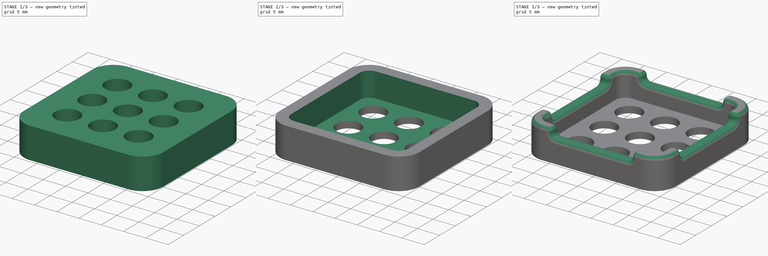
[diagram: build sequence overview — one tinted view per stage of 3, left to right]
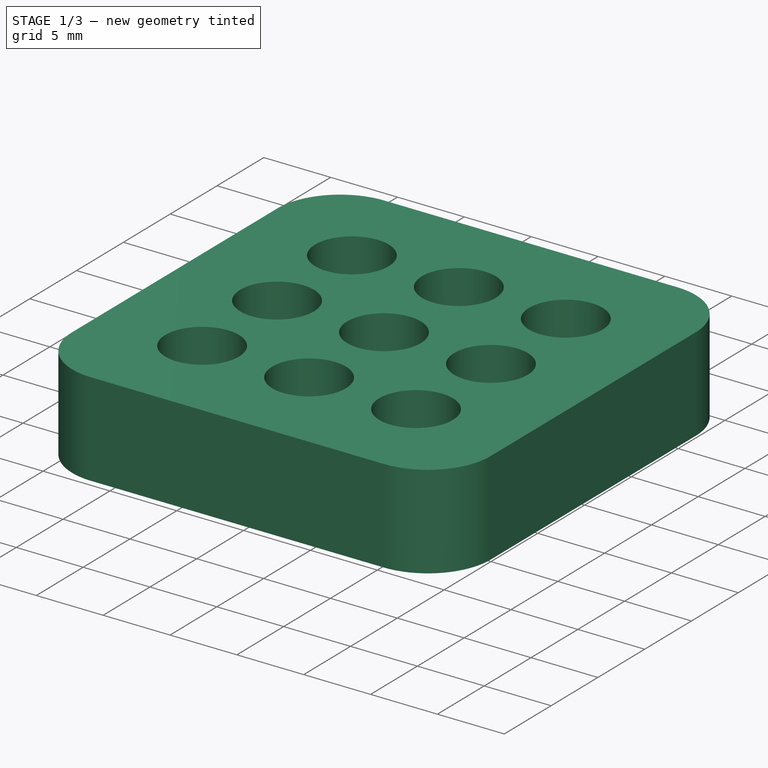
[diagram: stage 1 of 3 — iso view after this stage's code; geometry added in this stage tinted green]
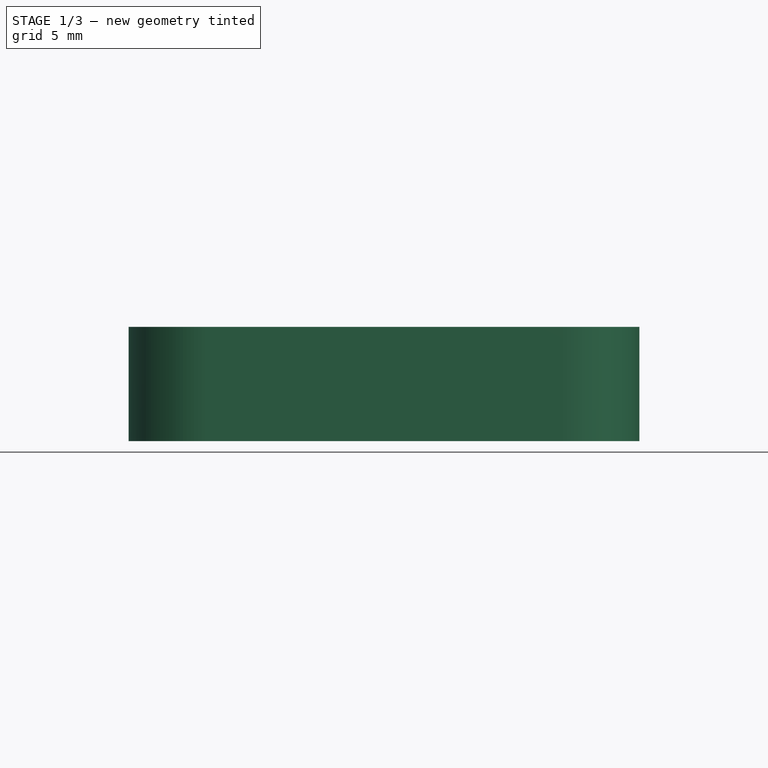
[diagram: stage 1 of 3 — front view after this stage's code; geometry added in this stage tinted green]
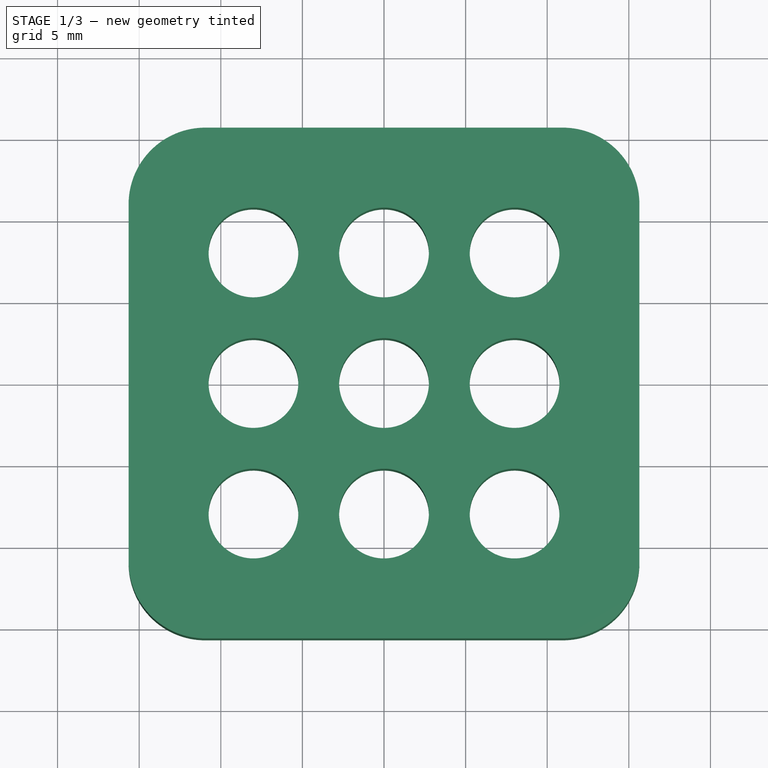
[diagram: stage 1 of 3 — top view after this stage's code; geometry added in this stage tinted green]
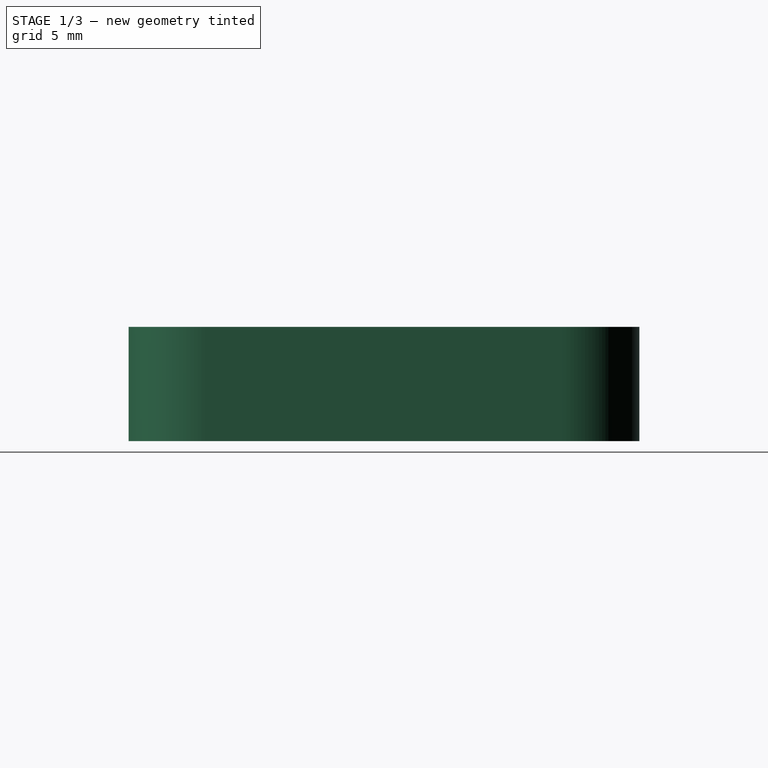
[diagram: stage 1 of 3 — right view after this stage's code; geometry added in this stage tinted green]
FCSTD DOCUMENT  (FreeCAD 1.0R39109 (Git))
Label: Monitor-Guide
License: All rights reserved
LicenseURL: http://en.wikipedia.org/wiki/All_rights_reserved
objects: Sketcher::SketchObject×4, PartDesign::Pocket×3, PartDesign::Pad×1, PartDesign::Fillet×1, PartDesign::Body×1
note: 24 computed .brp shape members not serialized (recipe doc carries the construction recipe); baked Part::Feature solids carry a one-line shape summary decoded from their .brp

FEATURE [Sketcher::SketchObject] Sketch  label="Recess"
  ArcFitTolerance = 0
  AttachmentSupport = -> [XY_Plane]
  FullyConstrained = true
  MakeInternals = false
  MapMode = 5
  sketch-geometry (15):
    g0: LineSegment [constr] StartX=-13.15 StartY=-13.15 StartZ=0 EndX=-13.15 EndY=13.15 EndZ=0
    g1: LineSegment [constr] StartX=-13.15 StartY=13.15 StartZ=0 EndX=13.15 EndY=13.15 EndZ=0
    g2: LineSegment [constr] StartX=13.15 StartY=13.15 StartZ=0 EndX=13.15 EndY=-13.15 EndZ=0
    g3: LineSegment [constr] StartX=13.15 StartY=-13.15 StartZ=0 EndX=-13.15 EndY=-13.15 EndZ=0
    g4: GeomPoint [constr] X=0 Y=0 Z=0
    g5: ArcOfCircle CenterX=-10.95 CenterY=10.95 CenterZ=0 NormalX=0 NormalY=0 NormalZ=1 AngleXU=0 Radius=2.2 StartAngle=1.5708 EndAngle=3.14159
    g6: LineSegment StartX=-10.95 StartY=13.15 StartZ=0 EndX=10.95 EndY=13.15 EndZ=0
    g7: ArcOfCircle CenterX=10.95 CenterY=10.95 CenterZ=0 NormalX=0 NormalY=0 NormalZ=1 AngleXU=0 Radius=2.2 StartAngle=5e-16 EndAngle=1.5708
    g8: LineSegment StartX=13.15 StartY=10.95 StartZ=0 EndX=13.15 EndY=-10.95 EndZ=0
    g9: ArcOfCircle CenterX=10.95 CenterY=-10.95 CenterZ=0 NormalX=0 NormalY=0 NormalZ=1 AngleXU=0 Radius=2.2 StartAngle=4.71239 EndAngle=6.28319
    g10: LineSegment StartX=10.95 StartY=-13.15 StartZ=0 EndX=-10.95 EndY=-13.15 EndZ=0
    g11: ArcOfCircle CenterX=-10.95 CenterY=-10.95 CenterZ=0 NormalX=0 NormalY=0 NormalZ=1 AngleXU=0 Radius=2.2 StartAngle=3.14159 EndAngle=4.71239
    g12: LineSegment StartX=-13.15 StartY=-10.95 StartZ=0 EndX=-13.15 EndY=10.95 EndZ=0
    g13: GeomPoint [constr] X=-13.15 Y=13.15 Z=0
    g14: GeomPoint [constr] X=13.15 Y=-13.15 Z=0
  constraints (34):
    c: Coincident(g0,g1)
    c: Coincident(g1,g2)
    c: Coincident(g2,g3)
    c: Coincident(g3,g0)
    c: Horizontal(g1)
    c: Horizontal(g3)
    c: Vertical(g0)
    c: Vertical(g2)
    c: Symmetric(g1,g0,g4)
    c: Coincident(g4,g-1)
    c: DistanceY(g2,g1) = 26.3
    c: DistanceX(g0,g1) = 26.3
    c: Tangent(g5,g6) = 1.5708
    c: Tangent(g6,g7) = 1.5708
    c: Tangent(g7,g8) = 1.5708
    c: Tangent(g8,g9) = 1.5708
    c: Tangent(g9,g10) = 1.5708
    c: Tangent(g10,g11) = 1.5708
    c: Tangent(g11,g12) = 1.5708
    c: Tangent(g12,g5) = 1.5708
    c: Horizontal(g6)
    c: Horizontal(g10)
    c: Vertical(g8)
    c: Vertical(g12)
    c: Equal(g5,g7)
    c: Equal(g7,g9)
    c: Equal(g9,g11)
    c: PointOnObject(g13,g6)
    c: PointOnObject(g13,g12)
    c: PointOnObject(g14,g8)
    c: PointOnObject(g14,g10)
    c: Coincident(g13,g0)
    c: Coincident(g14,g2)
    c: Radius(g5) = 2.2
FEATURE [Sketcher::SketchObject] Sketch001  label="Solid"
  ArcFitTolerance = 0
  AttachmentSupport = -> [XY_Plane]
  ExternalGeometry = -> [Sketch]
  FullyConstrained = true
  MakeInternals = false
  MapMode = 5
  sketch-geometry (26):
    g0: LineSegment [constr] StartX=-10.95 StartY=13.15 StartZ=0 EndX=-13.15 EndY=13.15 EndZ=0
    g1: LineSegment [constr] StartX=-13.15 StartY=13.15 StartZ=0 EndX=-13.15 EndY=10.95 EndZ=0
    g2: LineSegment [constr] StartX=-13.15 StartY=10.95 StartZ=0 EndX=-10.95 EndY=10.95 EndZ=0
    g3: LineSegment [constr] StartX=-10.95 StartY=10.95 StartZ=0 EndX=-10.95 EndY=13.15 EndZ=0
    g4: LineSegment [constr] StartX=13.15 StartY=-10.95 StartZ=0 EndX=10.95 EndY=-10.95 EndZ=0
    g5: LineSegment [constr] StartX=10.95 StartY=-10.95 StartZ=0 EndX=10.95 EndY=-13.15 EndZ=0
    g6: LineSegment [constr] StartX=10.95 StartY=-13.15 StartZ=0 EndX=13.15 EndY=-13.15 EndZ=0
    g7: LineSegment [constr] StartX=13.15 StartY=-13.15 StartZ=0 EndX=13.15 EndY=-10.95 EndZ=0
    g8: LineSegment [constr] StartX=-13.15 StartY=13.15 StartZ=0 EndX=-15.65 EndY=13.15 EndZ=0
    g9: LineSegment [constr] StartX=-15.65 StartY=13.15 StartZ=0 EndX=-15.65 EndY=15.65 EndZ=0
    g10: LineSegment [constr] StartX=-15.65 StartY=15.65 StartZ=0 EndX=-13.15 EndY=15.65 EndZ=0
    g11: LineSegment [constr] StartX=-13.15 StartY=15.65 StartZ=0 EndX=-13.15 EndY=13.15 EndZ=0
    g12: LineSegment [constr] StartX=13.15 StartY=-13.15 StartZ=0 EndX=15.65 EndY=-13.15 EndZ=0
    g13: LineSegment [constr] StartX=15.65 StartY=-13.15 StartZ=0 EndX=15.65 EndY=-15.65 EndZ=0
    g14: LineSegment [constr] StartX=15.65 StartY=-15.65 StartZ=0 EndX=13.15 EndY=-15.65 EndZ=0
    g15: LineSegment [constr] StartX=13.15 StartY=-15.65 StartZ=0 EndX=13.15 EndY=-13.15 EndZ=0
    g16: ArcOfCircle CenterX=-10.95 CenterY=10.95 CenterZ=0 NormalX=0 NormalY=0 NormalZ=1 AngleXU=0 Radius=4.7 StartAngle=1.5708 EndAngle=3.14159
    g17: LineSegment StartX=-10.95 StartY=15.65 StartZ=0 EndX=10.95 EndY=15.65 EndZ=0
    g18: ArcOfCircle CenterX=10.95 CenterY=10.95 CenterZ=0 NormalX=0 NormalY=0 NormalZ=1 AngleXU=0 Radius=4.7 StartAngle=0 EndAngle=1.5708
    g19: LineSegment StartX=15.65 StartY=10.95 StartZ=0 EndX=15.65 EndY=-10.95 EndZ=0
    g20: ArcOfCircle CenterX=10.95 CenterY=-10.95 CenterZ=0 NormalX=0 NormalY=0 NormalZ=1 AngleXU=0 Radius=4.7 StartAngle=4.71239 EndAngle=6.28319
    g21: LineSegment StartX=10.95 StartY=-15.65 StartZ=0 EndX=-10.95 EndY=-15.65 EndZ=0
    g22: ArcOfCircle CenterX=-10.95 CenterY=-10.95 CenterZ=0 NormalX=0 NormalY=0 NormalZ=1 AngleXU=0 Radius=4.7 StartAngle=3.14159 EndAngle=4.71239
    g23: LineSegment StartX=-15.65 StartY=-10.95 StartZ=0 EndX=-15.65 EndY=10.95 EndZ=0
    g24: GeomPoint [constr] X=-15.65 Y=15.65 Z=0
    g25: GeomPoint [constr] X=15.65 Y=-15.65 Z=0
  constraints (63):
    c: Coincident(g0,g1)
    c: Coincident(g1,g2)
    c: Coincident(g2,g3)
    c: Coincident(g3,g0)
    c: Horizontal(g0)
    c: Horizontal(g2)
    c: Vertical(g1)
    c: Vertical(g3)
    c: Coincident(g0,g-3)
    c: Coincident(g1,g-3)
    c: Coincident(g4,g5)
    c: Coincident(g5,g6)
    c: Coincident(g6,g7)
    c: Coincident(g7,g4)
    c: Horizontal(g4)
    c: Horizontal(g6)
    c: Vertical(g5)
    c: Vertical(g7)
    c: Coincident(g4,g-6)
    c: Coincident(g5,g-6)
    c: Coincident(g8,g9)
    c: Coincident(g9,g10)
    c: Coincident(g10,g11)
    c: Coincident(g11,g8)
    c: Horizontal(g8)
    c: Horizontal(g10)
    c: Vertical(g9)
    c: Vertical(g11)
    c: Coincident(g8,g0)
    c: Equal(g8,g11)
    c: Coincident(g12,g13)
    c: Coincident(g13,g14)
    c: Coincident(g14,g15)
    c: Coincident(g15,g12)
    c: Horizontal(g12)
    c: Horizontal(g14)
    c: Vertical(g13)
    c: Vertical(g15)
    c: Coincident(g12,g6)
    c: Equal(g12,g11)
    c: Equal(g15,g8)
    c: DistanceY(g11,g11) = 2.5
    c: Tangent(g16,g17) = 1.5708
    c: Tangent(g17,g18) = 1.5708
    c: Tangent(g18,g19) = 1.5708
    c: Tangent(g19,g20) = 1.5708
    c: Tangent(g20,g21) = 1.5708
    c: Tangent(g21,g22) = 1.5708
    c: Tangent(g22,g23) = 1.5708
    c: Tangent(g23,g16) = 1.5708
    c: Horizontal(g17)
    c: Horizontal(g21)
    c: Vertical(g19)
    c: Vertical(g23)
    c: Equal(g16,g18)
    c: Equal(g18,g20)
    c: Equal(g20,g22)
    c: PointOnObject(g24,g17)
    c: PointOnObject(g25,g19)
    c: PointOnObject(g25,g21)
    c: Coincident(g24,g9)
    c: Coincident(g25,g13)
    c: Coincident(g16,g2)
FEATURE [Sketcher::SketchObject] Sketch002  label="Holes"
  ArcFitTolerance = 0
  AttachmentSupport = -> [XY_Plane]
  FullyConstrained = false
  MakeInternals = false
  MapMode = 5
  sketch-geometry (18):
    g0: LineSegment [constr] StartX=-8 StartY=8 StartZ=0 EndX=-8 EndY=-8 EndZ=0
    g1: LineSegment [constr] StartX=-8 StartY=-8 StartZ=0 EndX=8 EndY=-8 EndZ=0
    g2: LineSegment [constr] StartX=8 StartY=-8 StartZ=0 EndX=8 EndY=8 EndZ=0
    g3: LineSegment [constr] StartX=8 StartY=8 StartZ=0 EndX=-8 EndY=8 EndZ=0
    g4: GeomPoint [constr] X=0 Y=0 Z=0
    g5: GeomPoint [constr] X=0 Y=8 Z=0
    g6: GeomPoint [constr] X=-8 Y=0 Z=0
    g7: GeomPoint [constr] X=0 Y=-8 Z=0
    g8: GeomPoint [constr] X=8 Y=0 Z=0
    g9: Circle CenterX=0 CenterY=0 CenterZ=0 NormalX=0 NormalY=0 NormalZ=1 AngleXU=0 Radius=2.75
    g10: Circle CenterX=0 CenterY=8 CenterZ=0 NormalX=0 NormalY=0 NormalZ=1 AngleXU=0 Radius=2.75
    g11: Circle CenterX=8 CenterY=8 CenterZ=0 NormalX=0 NormalY=0 NormalZ=1 AngleXU=0 Radius=2.75
    g12: Circle CenterX=-8 CenterY=8 CenterZ=0 NormalX=0 NormalY=0 NormalZ=1 AngleXU=0 Radius=2.75
    g13: Circle CenterX=-8 CenterY=0 CenterZ=0 NormalX=0 NormalY=0 NormalZ=1 AngleXU=0 Radius=2.75
    g14: Circle CenterX=8 CenterY=0 CenterZ=0 NormalX=0 NormalY=0 NormalZ=1 AngleXU=0 Radius=2.75
    g15: Circle CenterX=8 CenterY=-8 CenterZ=0 NormalX=0 NormalY=0 NormalZ=1 AngleXU=0 Radius=2.75
    g16: Circle CenterX=0 CenterY=-8 CenterZ=0 NormalX=0 NormalY=0 NormalZ=1 AngleXU=0 Radius=2.75
    g17: Circle CenterX=-8 CenterY=-8 CenterZ=0 NormalX=0 NormalY=0 NormalZ=1 AngleXU=0 Radius=2.75
  constraints (34):
    c: Coincident(g0,g1)
    c: Coincident(g1,g2)
    c: Coincident(g2,g3)
    c: Coincident(g3,g0)
    c: Horizontal(g1)
    c: Horizontal(g3)
    c: Vertical(g0)
    c: Vertical(g2)
    c: Symmetric(g1,g0,g4)
    c: Coincident(g4,g-1)
    c: DistanceY(g2,g2) = 16
    c: DistanceX(g3,g3) = 16
    c: PointOnObject(g5,g3)
    c: PointOnObject(g6,g0)
    c: PointOnObject(g7,g1)
    c: PointOnObject(g8,g2)
    c: Coincident(g9,g4)
    c: Coincident(g10,g5)
    c: Coincident(g11,g2)
    c: Coincident(g12,g0)
    c: Coincident(g13,g6)
    c: Coincident(g14,g8)
    c: Coincident(g15,g1)
    c: Coincident(g16,g7)
    c: Coincident(g17,g0)
    c: Diameter(g9) = 5.5
    c: Equal(g12,g9)
    c: Equal(g10,g9)
    c: Equal(g11,g9)
    c: Equal(g14,g9)
    c: Equal(g15,g9)
    c: Equal(g16,g9)
    c: Equal(g17,g9)
    c: Equal(g13,g9)
FEATURE [PartDesign::Pad] Pad
  Direction = (0,0,1)
  Length = 7
  Length2 = 10
  Profile = -> Sketch001
  ReferenceAxis = -> Sketch001 [N_Axis]
  Reversed = true
  Suppressed = false
  Type = 0
FEATURE [PartDesign::Pocket] Pocket
  BaseFeature = -> Pad
  Direction = (0,0,-1)
  Length = 8
  Length2 = 5
  Profile = -> Sketch002
  ReferenceAxis = -> Sketch002 [N_Axis]
  Suppressed = false
  Type = 0
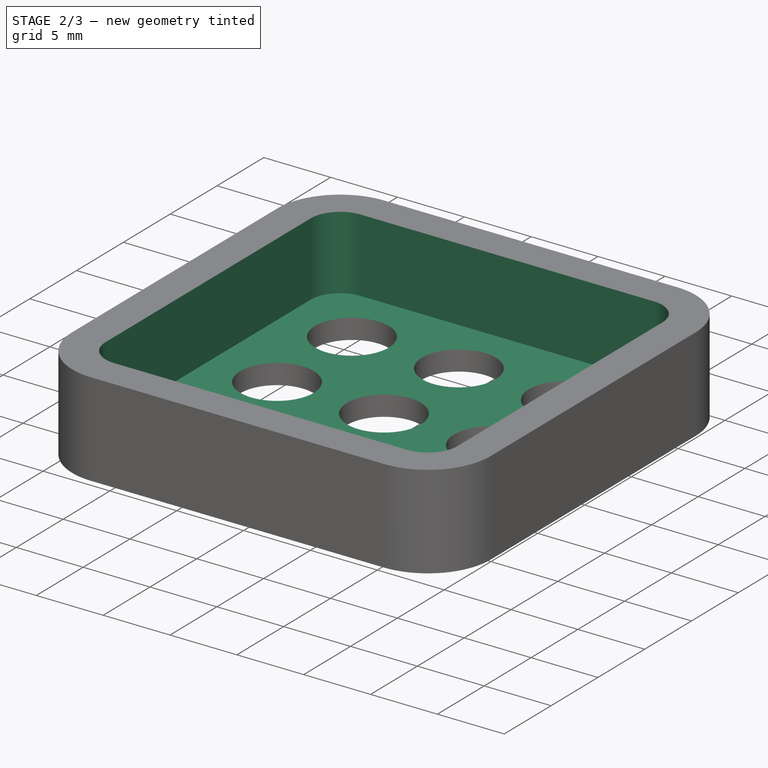
[diagram: stage 2 of 3 — iso view after this stage's code; geometry added in this stage tinted green]
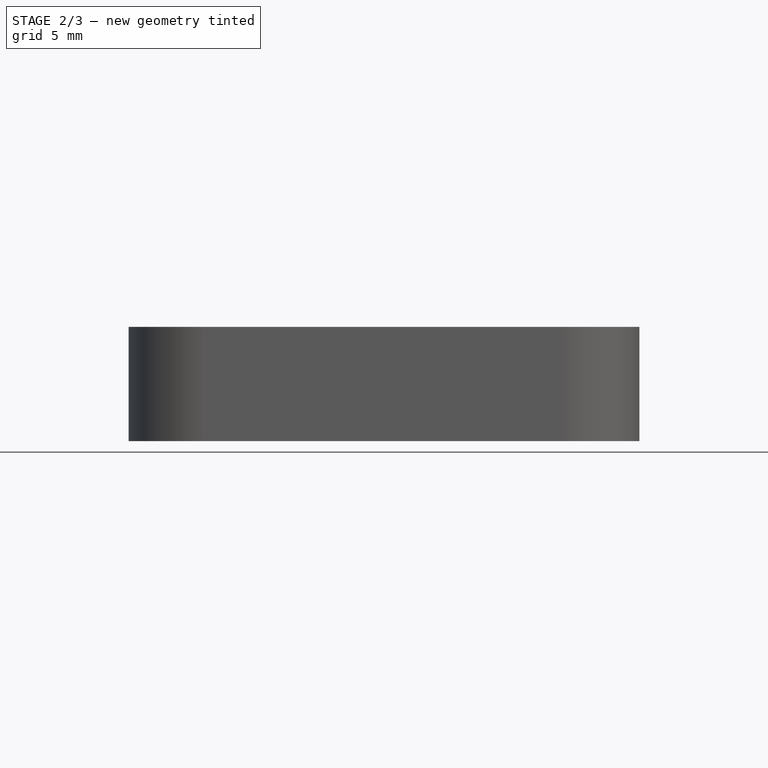
[diagram: stage 2 of 3 — front view after this stage's code; geometry added in this stage tinted green]
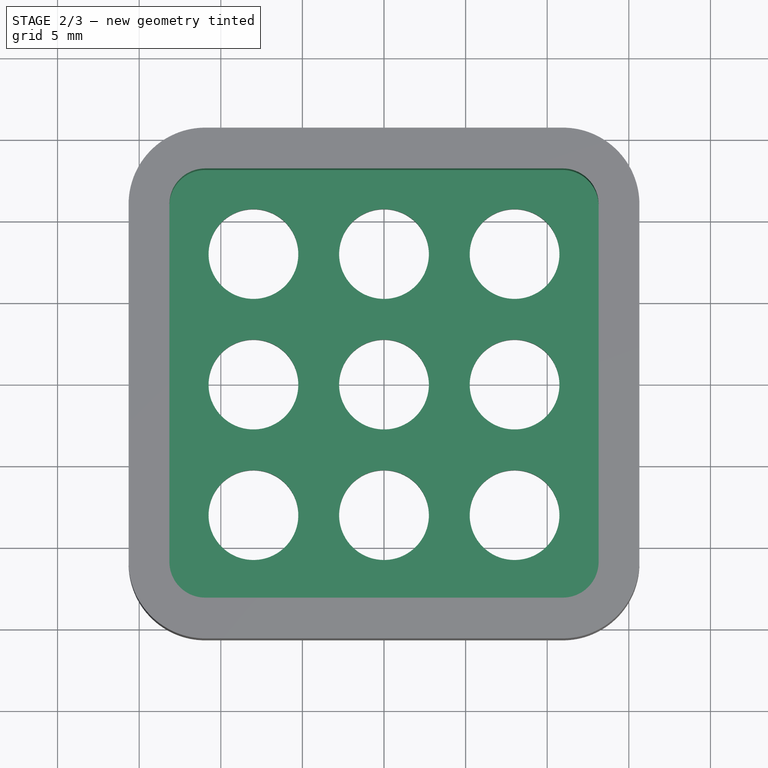
[diagram: stage 2 of 3 — top view after this stage's code; geometry added in this stage tinted green]
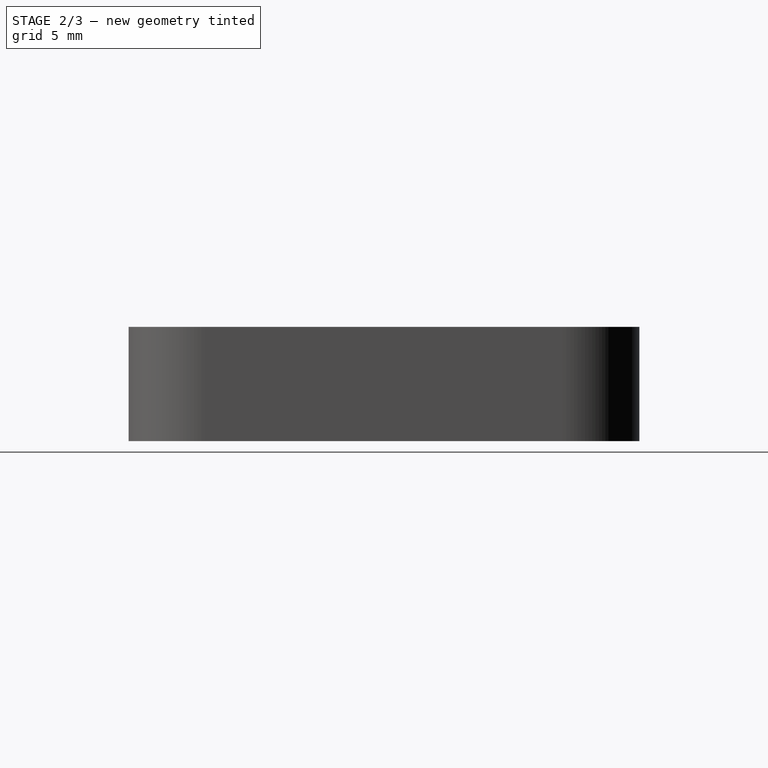
[diagram: stage 2 of 3 — right view after this stage's code; geometry added in this stage tinted green]
FEATURE [PartDesign::Pocket] Pocket001
  BaseFeature = -> Pocket
  Direction = (0,0,-1)
  Length = 5.5
  Length2 = 5
  Profile = -> Sketch
  ReferenceAxis = -> Sketch [N_Axis]
  Suppressed = false
  Type = 0
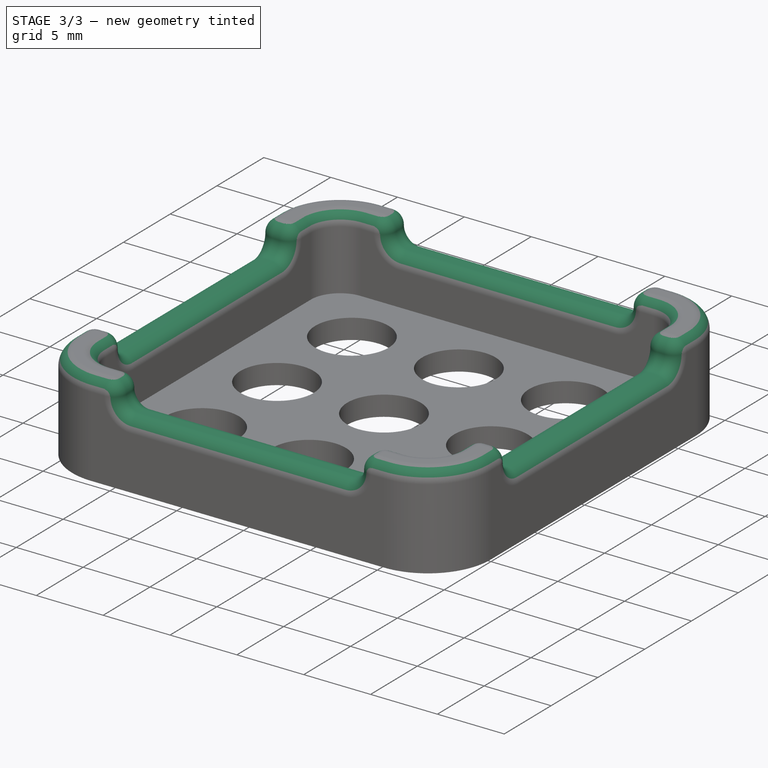
[diagram: stage 3 of 3 — iso view after this stage's code; geometry added in this stage tinted green]
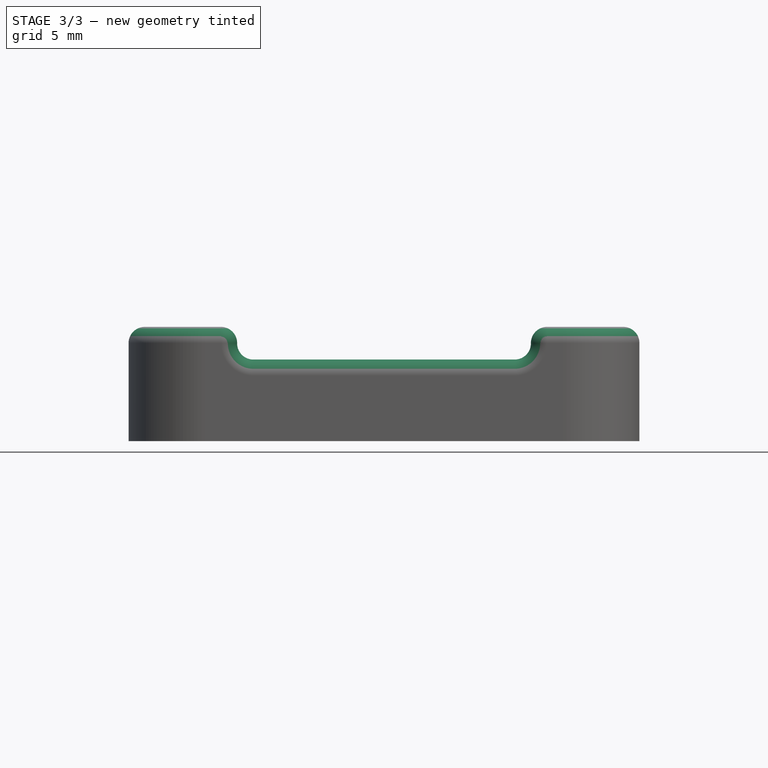
[diagram: stage 3 of 3 — front view after this stage's code; geometry added in this stage tinted green]
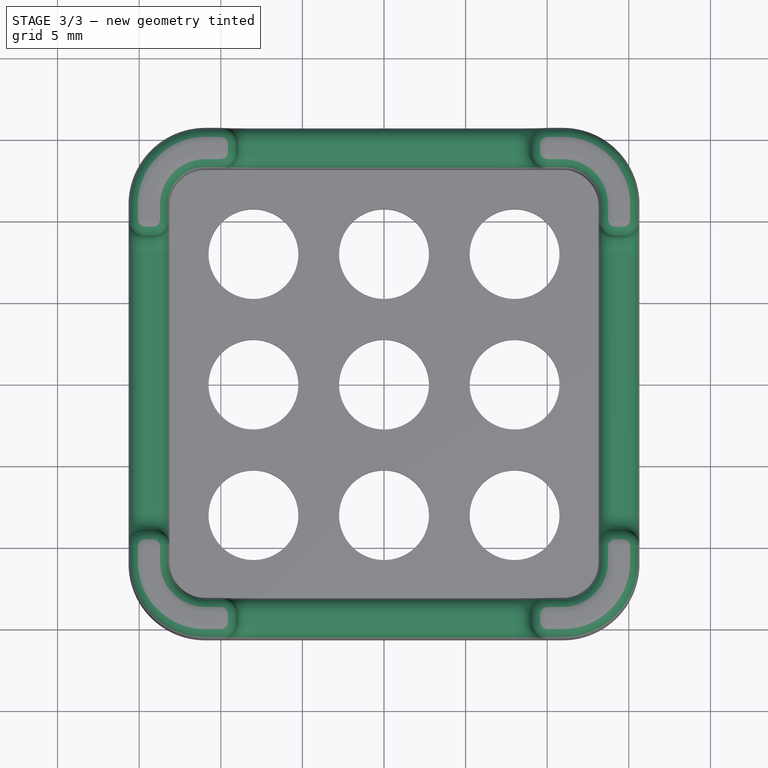
[diagram: stage 3 of 3 — top view after this stage's code; geometry added in this stage tinted green]
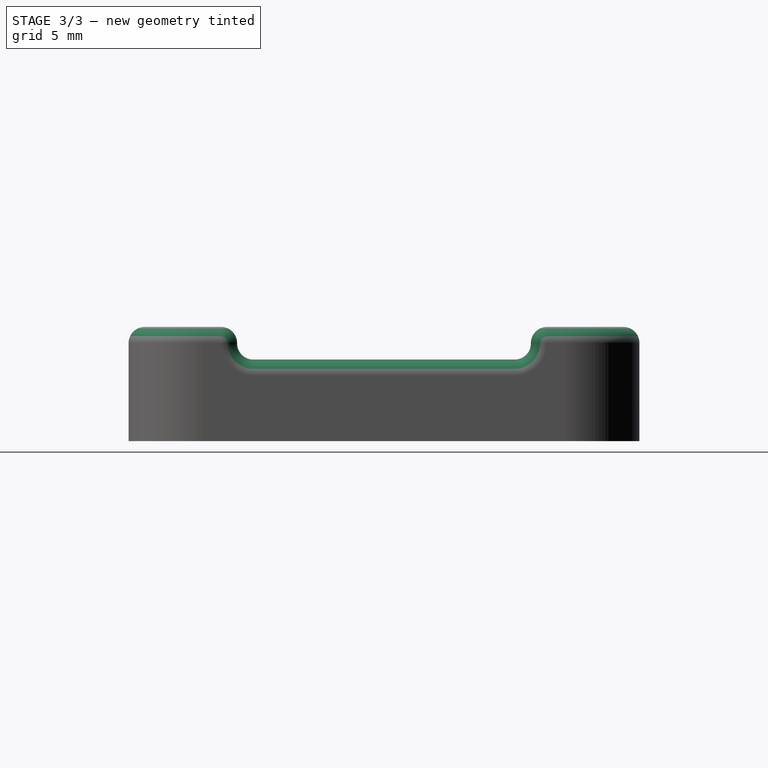
[diagram: stage 3 of 3 — right view after this stage's code; geometry added in this stage tinted green]
FEATURE [Sketcher::SketchObject] Sketch003  label="Crenellation"
  ArcFitTolerance = 0
  AttachmentSupport = -> [Pocket001]
  ExternalGeometry = -> [Sketch]
  FullyConstrained = true
  MakeInternals = false
  MapMode = 5
  sketch-geometry (10):
    g0: LineSegment StartX=-9 StartY=-16 StartZ=0 EndX=-9 EndY=16 EndZ=0
    g1: LineSegment StartX=-9 StartY=16 StartZ=0 EndX=9 EndY=16 EndZ=0
    g2: LineSegment StartX=9 StartY=16 StartZ=0 EndX=9 EndY=-16 EndZ=0
    g3: GeomPoint [constr] X=0 Y=0 Z=0
    g4: LineSegment StartX=-9 StartY=-16 StartZ=0 EndX=9 EndY=-16 EndZ=0
    g5: LineSegment StartX=-16 StartY=9 StartZ=0 EndX=-16 EndY=-9 EndZ=0
    g6: LineSegment StartX=-16 StartY=-9 StartZ=0 EndX=16 EndY=-9 EndZ=0
    g7: LineSegment StartX=16 StartY=-9 StartZ=0 EndX=16 EndY=9 EndZ=0
    g8: LineSegment StartX=16 StartY=9 StartZ=0 EndX=-16 EndY=9 EndZ=0
    g9: GeomPoint [constr] X=0 Y=0 Z=0
  constraints (24):
    c: Coincident(g0,g1)
    c: Coincident(g1,g2)
    c: Horizontal(g1)
    c: Vertical(g0)
    c: Vertical(g2)
    c: Symmetric(g1,g0,g3)
    c: Distance(g1) = 18
    c: Distance(g2) = 32
    c: Coincident(g4,g0)
    c: Coincident(g4,g2)
    c: Horizontal(g4)
    c: Coincident(g-1,g3)
    c: Coincident(g5,g6)
    c: Coincident(g6,g7)
    c: Coincident(g7,g8)
    c: Coincident(g8,g5)
    c: Horizontal(g6)
    c: Horizontal(g8)
    c: Vertical(g5)
    c: Vertical(g7)
    c: Symmetric(g6,g5,g9)
    c: Coincident(g9,g3)
    c: Equal(g7,g1)
    c: Equal(g8,g2)
FEATURE [PartDesign::Pocket] Pocket002
  BaseFeature = -> Pocket001
  Direction = (0,0,-1)
  Length = 2
  Length2 = 5
  Profile = -> Sketch003
  ReferenceAxis = -> Sketch003 [N_Axis]
  Suppressed = false
  Type = 0
FEATURE [PartDesign::Fillet] Fillet
  Base = -> Pocket002 [Face4,Face7,Face8,Face9,Face31,Face38,Face40,Face41,Face42,Face11,Face13,Face14,Face6,Face36,Face39,Face12]
  BaseFeature = -> Pocket002
  Radius = 0.99
  SupportTransform = false
  Suppressed = false
  UseAllEdges = false
FEATURE [PartDesign::Body] Body
  AllowCompound = false
  Group = -> [Sketch,Sketch001,Sketch002,Pad,Pocket,Pocket001,Sketch003,Pocket002,Fillet]
  Origin = -> Origin
  Tip = -> Fillet
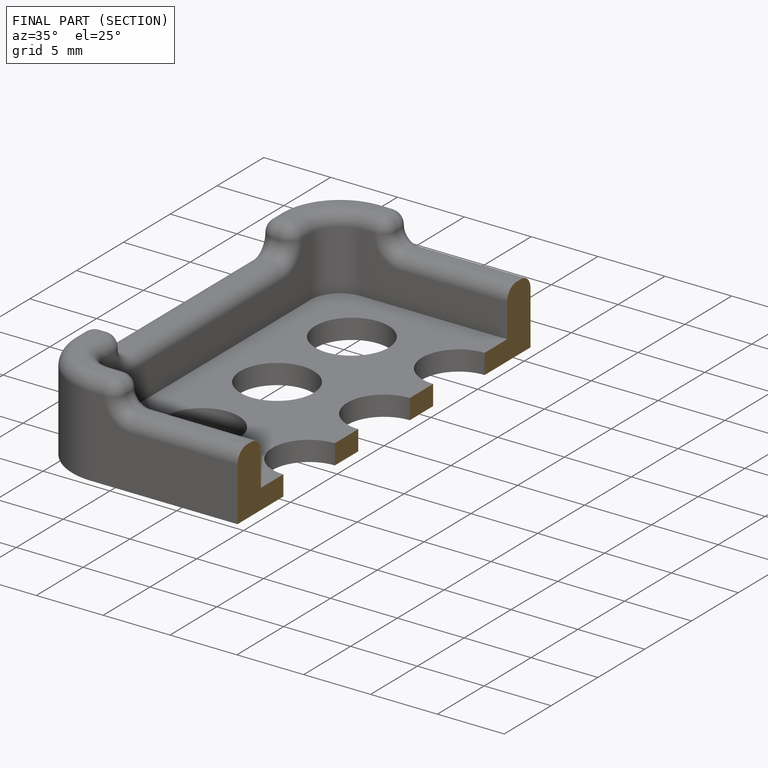
[diagram: finished part — half-section view (interior)]
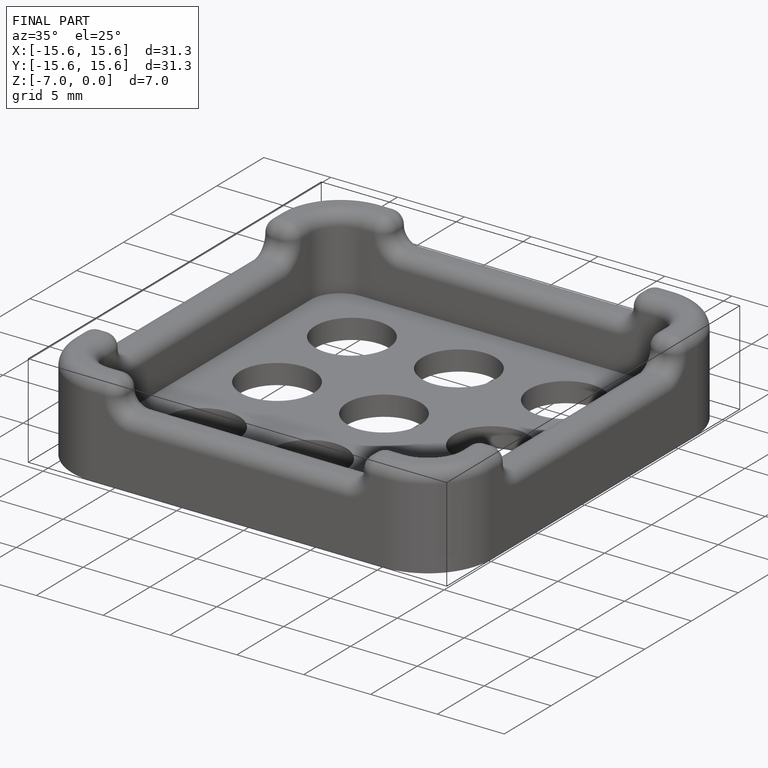
[diagram: finished part — iso view with bounding-box wireframe]
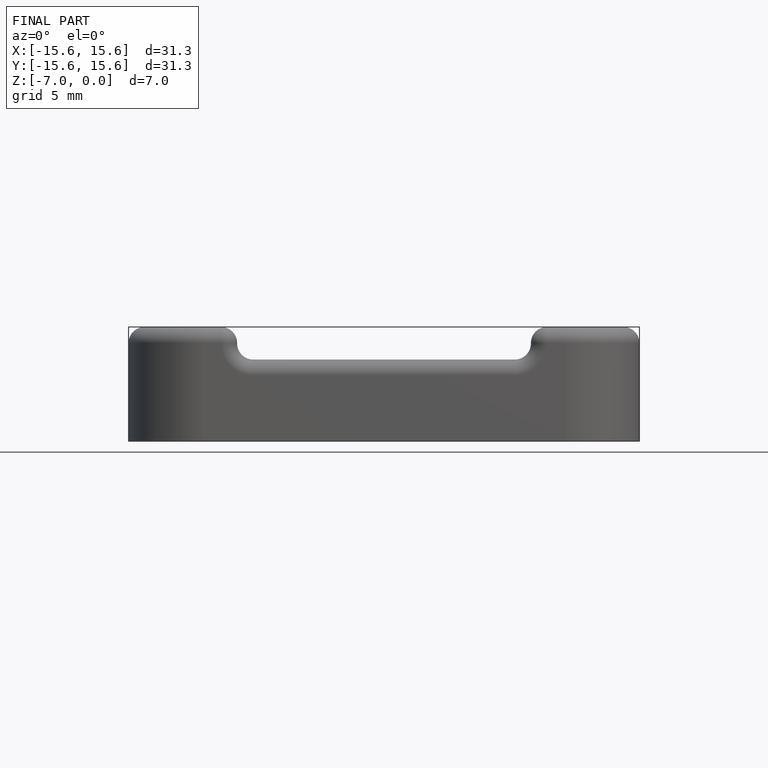
[diagram: finished part — front view with bounding-box wireframe]
